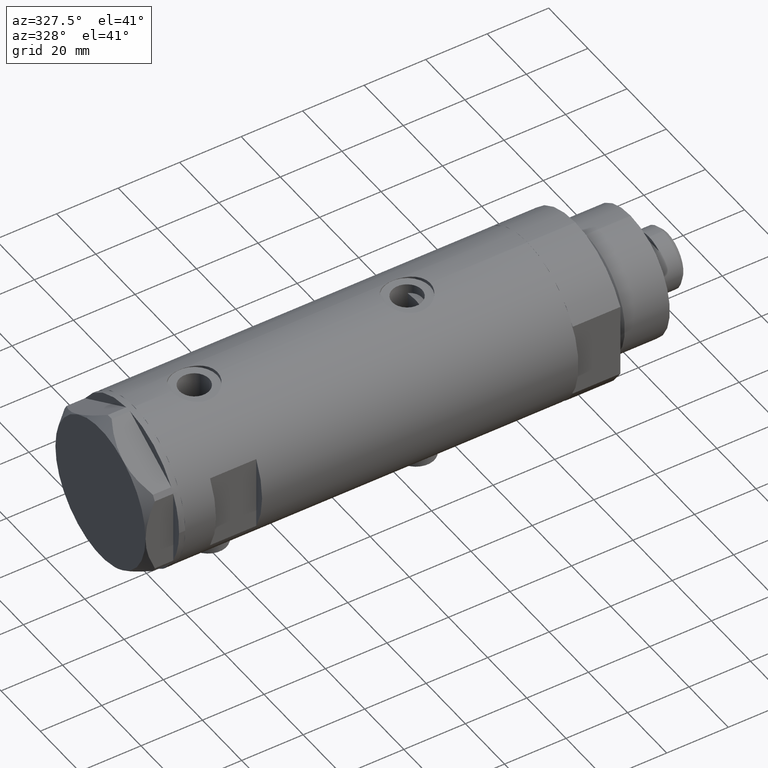
[diagram: clean part render]
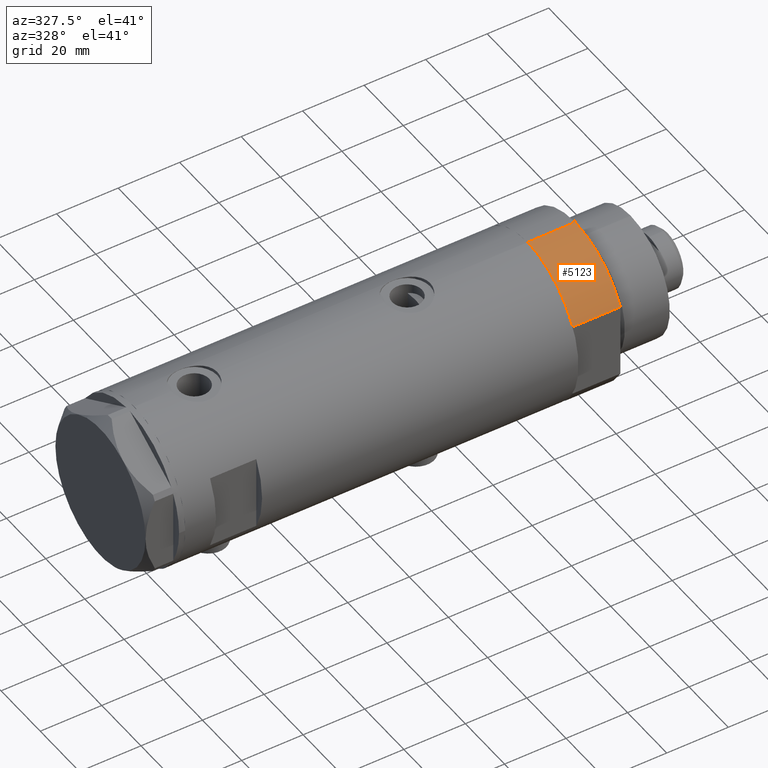
[diagram: same view with one face highlighted and labeled with its STEP entity id]
A machine part, auxiliary view. The second image highlights one B-rep face of the part: STEP entity #5123.
In plain terms, the highlighted cylindrical surface (partial cylindrical patch) has radius 26 mm, axis along (-1, -0, 0).
Its self-contained STEP definition (entity closure, byte-faithful):
#177 = DIRECTION ( 'NONE',  ( 0.000000000000000000, 0.000000000000000000, 1.000000000000000000 ) ) ;
#518 = FACE_OUTER_BOUND ( 'NONE', #2916, .T. ) ;
#553 = VERTEX_POINT ( 'NONE', #5170 ) ;
#766 = LINE ( 'NONE', #4808, #1559 ) ;
#893 = ORIENTED_EDGE ( 'NONE', *, *, #4314, .T. ) ;
#980 = AXIS2_PLACEMENT_3D ( 'NONE', #4556, #177, #2519 ) ;
#1043 = CARTESIAN_POINT ( 'NONE',  ( -12.12435565298215145, -22.99999999999999645, 0.000000000000000000 ) ) ;
#1166 = CARTESIAN_POINT ( 'NONE',  ( -12.12435565298215501, -22.99999999999999645, 0.000000000000000000 ) ) ;
#1559 = VECTOR ( 'NONE', #5117, 1000.000000000000000 ) ;
#1733 = CARTESIAN_POINT ( 'NONE',  ( 0.000000000000000000, 0.000000000000000000, 15.50000000000000000 ) ) ;
#1762 = ORIENTED_EDGE ( 'NONE', *, *, #2365, .T. ) ;
#1789 = VERTEX_POINT ( 'NONE', #4668 ) ;
#2127 = CYLINDRICAL_SURFACE ( 'NONE', #4183, 26.00000000000000355 ) ;
#2209 = CARTESIAN_POINT ( 'NONE',  ( 0.000000000000000000, 0.000000000000000000, 15.50000000000000000 ) ) ;
#2365 = EDGE_CURVE ( 'NONE', #3655, #553, #3148, .T. ) ;
#2519 = DIRECTION ( 'NONE',  ( 1.000000000000000000, 0.000000000000000000, 0.000000000000000000 ) ) ;
#2663 = VECTOR ( 'NONE', #3861, 1000.000000000000000 ) ;
#2670 = ORIENTED_EDGE ( 'NONE', *, *, #3134, .T. ) ;
#2916 = EDGE_LOOP ( 'NONE', ( #4059, #2670, #893, #1762 ) ) ;
#3134 = EDGE_CURVE ( 'NONE', #3764, #1789, #766, .T. ) ;
#3148 = LINE ( 'NONE', #1043, #2663 ) ;
#3209 = DIRECTION ( 'NONE',  ( 1.000000000000000000, 0.000000000000000000, 0.000000000000000000 ) ) ;
#3291 = CARTESIAN_POINT ( 'NONE',  ( -26.00000000000000355, 0.000000000000000000, 15.50000000000000000 ) ) ;
#3655 = VERTEX_POINT ( 'NONE', #1166 ) ;
#3764 = VERTEX_POINT ( 'NONE', #3291 ) ;
#3796 = EDGE_CURVE ( 'NONE', #3764, #553, #4580, .T. ) ;
#3861 = DIRECTION ( 'NONE',  ( -0.000000000000000000, -0.000000000000000000, 1.000000000000000000 ) ) ;
#3919 = AXIS2_PLACEMENT_3D ( 'NONE', #2209, #4050, #3209 ) ;
#4050 = DIRECTION ( 'NONE',  ( 0.000000000000000000, 0.000000000000000000, 1.000000000000000000 ) ) ;
#4059 = ORIENTED_EDGE ( 'NONE', *, *, #3796, .F. ) ;
#4183 = AXIS2_PLACEMENT_3D ( 'NONE', #1733, #4943, #4966 ) ;
#4314 = EDGE_CURVE ( 'NONE', #1789, #3655, #4920, .T. ) ;
#4556 = CARTESIAN_POINT ( 'NONE',  ( 0.000000000000000000, 0.000000000000000000, 0.000000000000000000 ) ) ;
#4580 = CIRCLE ( 'NONE', #3919, 26.00000000000000355 ) ;
#4668 = CARTESIAN_POINT ( 'NONE',  ( -26.00000000000000355, 0.000000000000000000, 0.000000000000000000 ) ) ;
#4808 = CARTESIAN_POINT ( 'NONE',  ( -26.00000000000000355, 0.000000000000000000, 15.50000000000000000 ) ) ;
#4920 = CIRCLE ( 'NONE', #980, 26.00000000000000355 ) ;
#4943 = DIRECTION ( 'NONE',  ( -0.000000000000000000, -0.000000000000000000, -1.000000000000000000 ) ) ;
#4966 = DIRECTION ( 'NONE',  ( -1.000000000000000000, 0.000000000000000000, 0.000000000000000000 ) ) ;
#5117 = DIRECTION ( 'NONE',  ( -0.000000000000000000, -0.000000000000000000, -1.000000000000000000 ) ) ;
#5123 = ADVANCED_FACE ( 'NONE', ( #518 ), #2127, .T. ) ;
#5170 = CARTESIAN_POINT ( 'NONE',  ( -12.12435565298215323, -22.99999999999999645, 15.50000000000000000 ) ) ;